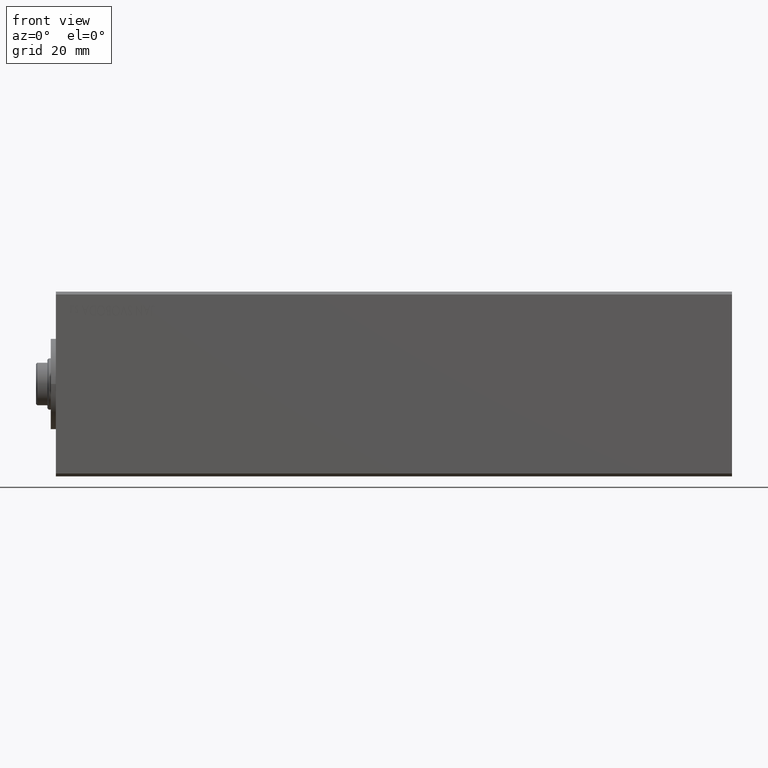
[diagram: clean part render]
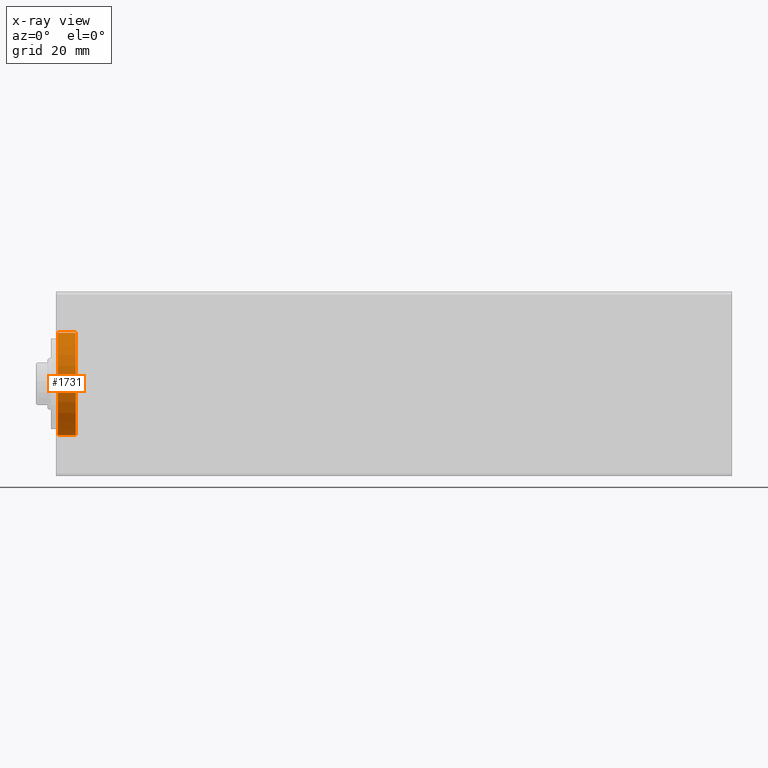
[diagram: x-ray — body ghosted, one internal face saturated and labeled with its STEP entity id]
A machine part, front view, then the same camera in x-ray: the body is ghosted and one INTERNAL B-rep face — a face not visible from any outside direction — is saturated and labeled: STEP entity #1731.
In plain terms, the highlighted cylindrical surface (partial cylindrical patch) has radius 18 mm, axis along (-1, -0, -0).
Its self-contained STEP definition (entity closure, byte-faithful):
#1731 = ADVANCED_FACE ( 'NONE', ( #11759 ), #25364, .F. ) ;
#4453 = VERTEX_POINT ( 'NONE', #17266 ) ;
#4541 = CARTESIAN_POINT ( 'NONE',  ( 7.000000000000000000, 2.204364238465235428E-15, -18.00000000000000000 ) ) ;
#4833 = DIRECTION ( 'NONE',  ( -1.000000000000000000, 0.000000000000000000, 0.000000000000000000 ) ) ;
#7294 = EDGE_CURVE ( 'NONE', #42702, #4453, #39463, .T. ) ;
#8870 = VECTOR ( 'NONE', #29649, 1000.000000000000000 ) ;
#9812 = CARTESIAN_POINT ( 'NONE',  ( 7.000000000000000000, 0.000000000000000000, 18.00000000000000000 ) ) ;
#11464 = CARTESIAN_POINT ( 'NONE',  ( 7.000000000000000000, 0.000000000000000000, 0.000000000000000000 ) ) ;
#11759 = FACE_OUTER_BOUND ( 'NONE', #40464, .T. ) ;
#11978 = DIRECTION ( 'NONE',  ( 0.000000000000000000, 0.000000000000000000, 1.000000000000000000 ) ) ;
#12559 = AXIS2_PLACEMENT_3D ( 'NONE', #11464, #18167, #24849 ) ;
#12862 = EDGE_CURVE ( 'NONE', #21909, #25209, #27972, .T. ) ;
#14481 = CARTESIAN_POINT ( 'NONE',  ( 7.000000000000000000, 2.204364238465235428E-15, -18.00000000000000000 ) ) ;
#14953 = EDGE_CURVE ( 'NONE', #21909, #42702, #31772, .T. ) ;
#17266 = CARTESIAN_POINT ( 'NONE',  ( 0.7000000000000027311, 0.000000000000000000, 18.00000000000000000 ) ) ;
#18167 = DIRECTION ( 'NONE',  ( -1.000000000000000000, 0.000000000000000000, 0.000000000000000000 ) ) ;
#18444 = DIRECTION ( 'NONE',  ( 0.000000000000000000, 0.000000000000000000, -1.000000000000000000 ) ) ;
#18956 = ORIENTED_EDGE ( 'NONE', *, *, #12862, .T. ) ;
#19197 = CIRCLE ( 'NONE', #20635, 18.00000000000000000 ) ;
#20635 = AXIS2_PLACEMENT_3D ( 'NONE', #35385, #4833, #18444 ) ;
#21909 = VERTEX_POINT ( 'NONE', #14481 ) ;
#22992 = AXIS2_PLACEMENT_3D ( 'NONE', #28937, #38967, #11978 ) ;
#23754 = EDGE_CURVE ( 'NONE', #25209, #4453, #19197, .T. ) ;
#24849 = DIRECTION ( 'NONE',  ( 0.000000000000000000, 0.000000000000000000, 1.000000000000000000 ) ) ;
#25209 = VERTEX_POINT ( 'NONE', #38421 ) ;
#25364 = CYLINDRICAL_SURFACE ( 'NONE', #22992, 18.00000000000000000 ) ;
#27371 = VECTOR ( 'NONE', #31519, 1000.000000000000000 ) ;
#27972 = LINE ( 'NONE', #4541, #27371 ) ;
#28937 = CARTESIAN_POINT ( 'NONE',  ( 7.000000000000000000, 0.000000000000000000, 0.000000000000000000 ) ) ;
#29649 = DIRECTION ( 'NONE',  ( -1.000000000000000000, -0.000000000000000000, -0.000000000000000000 ) ) ;
#30767 = ORIENTED_EDGE ( 'NONE', *, *, #14953, .F. ) ;
#31519 = DIRECTION ( 'NONE',  ( -1.000000000000000000, -0.000000000000000000, -0.000000000000000000 ) ) ;
#31772 = CIRCLE ( 'NONE', #12559, 18.00000000000000000 ) ;
#32429 = ORIENTED_EDGE ( 'NONE', *, *, #7294, .F. ) ;
#35171 = ORIENTED_EDGE ( 'NONE', *, *, #23754, .T. ) ;
#35385 = CARTESIAN_POINT ( 'NONE',  ( 0.7000000000000027311, 0.000000000000000000, 0.000000000000000000 ) ) ;
#38421 = CARTESIAN_POINT ( 'NONE',  ( 0.7000000000000027311, 2.204364238465235428E-15, -18.00000000000000000 ) ) ;
#38967 = DIRECTION ( 'NONE',  ( -1.000000000000000000, -0.000000000000000000, -0.000000000000000000 ) ) ;
#39463 = LINE ( 'NONE', #39686, #8870 ) ;
#39686 = CARTESIAN_POINT ( 'NONE',  ( 7.000000000000000000, 0.000000000000000000, 18.00000000000000000 ) ) ;
#40464 = EDGE_LOOP ( 'NONE', ( #30767, #18956, #35171, #32429 ) ) ;
#42702 = VERTEX_POINT ( 'NONE', #9812 ) ;